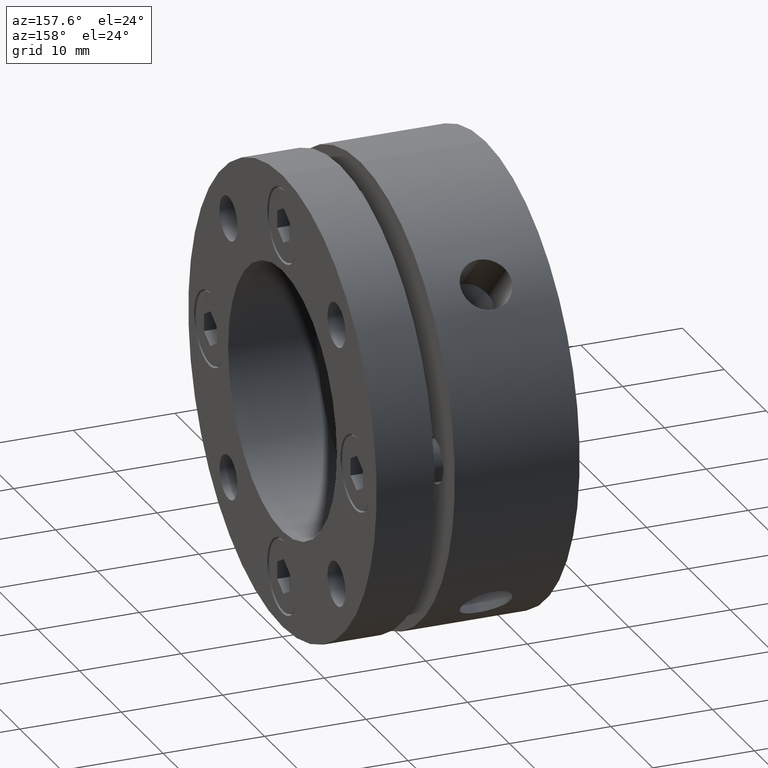
[diagram: clean part render]
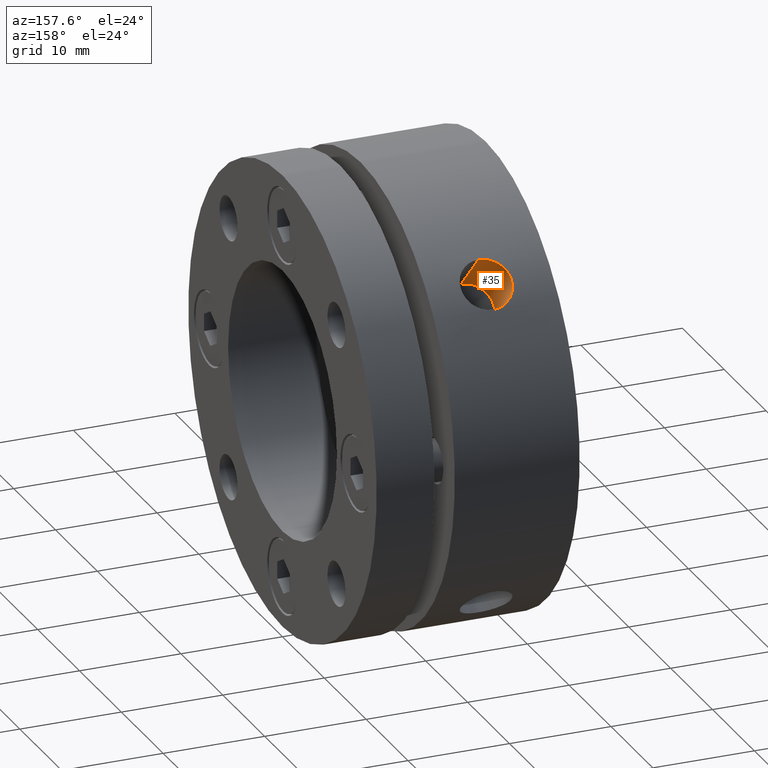
[diagram: same view with one face highlighted and labeled with its STEP entity id]
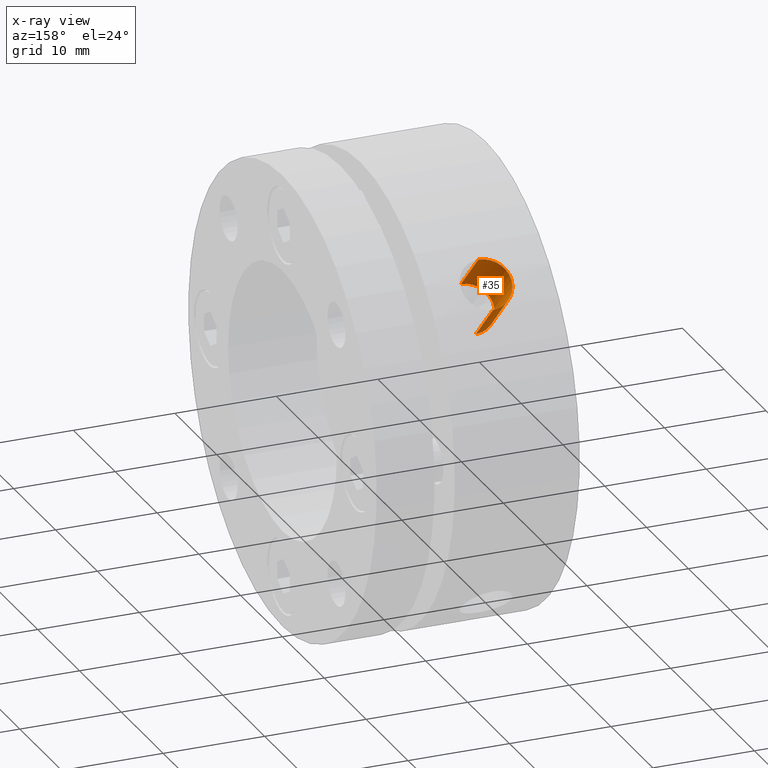
[diagram: x-ray of the same camera — body ghosted, the highlighted face saturated]
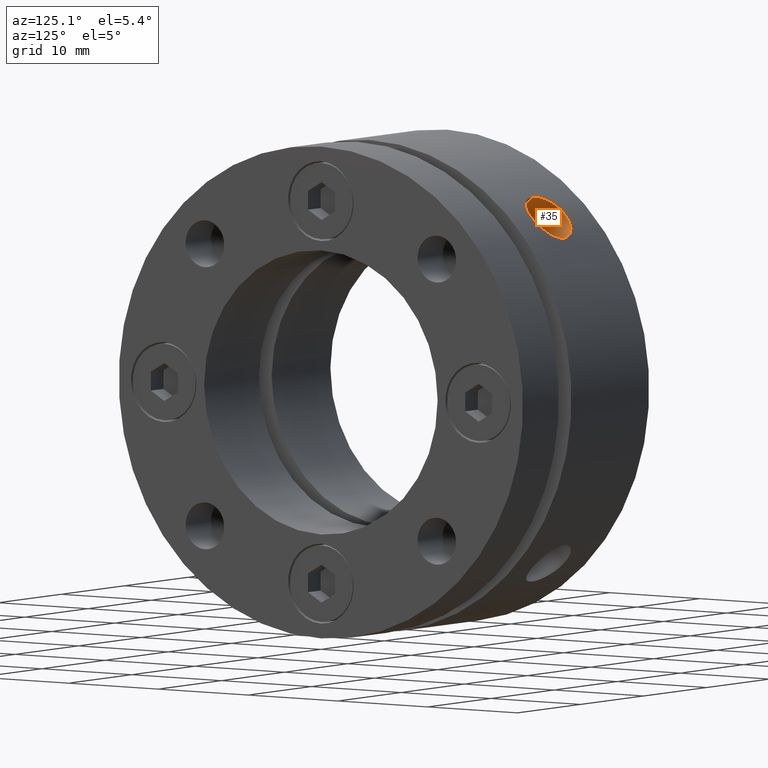
[diagram: same view with one face highlighted and labeled with its STEP entity id]
A machine part, auxiliary view. The second image highlights one B-rep face of the part: STEP entity #35.
The next image is the same camera in x-ray: the body ghosted, the highlighted face saturated — about 0% of this face is hidden behind the body in this view.
A second angle (auxiliary view) of the same face is appended — the face is thin or edge-on in the first view.
In plain terms, the highlighted cylindrical surface (edge-blend (fillet) strip) has radius 2.5 mm, axis along (0, 0.7071, 0.7071).
Its self-contained STEP definition (entity closure, byte-faithful):
#35 = ADVANCED_FACE ( 'NONE', ( #2394 ), #2403, .F. ) ;
#214 = DIRECTION ( 'NONE',  ( 0.0000000000000000000, -0.7071067811865471300, 0.7071067811865477900 ) ) ;
#216 = DIRECTION ( 'NONE',  ( 0.0000000000000000000, 0.7071067811865480200, 0.7071067811865470200 ) ) ;
#218 = CARTESIAN_POINT ( 'NONE',  ( 6.499999999999992900, 13.78858223313767800, 13.78858223313767600 ) ) ;
#473 = CARTESIAN_POINT ( 'NONE',  ( 6.499999999999992900, 13.43502884011711600, 9.899494939038948600 ) ) ;
#484 = CARTESIAN_POINT ( 'NONE',  ( 6.499999999999992900, 9.899494939038955700, 13.43502884011711500 ) ) ;
#490 = CARTESIAN_POINT ( 'NONE',  ( 6.499999999999992900, 17.57915525380826700, 14.04362134787552600 ) ) ;
#495 = CARTESIAN_POINT ( 'NONE',  ( 6.499999999999992900, 14.04362134787553100, 17.57915525380826700 ) ) ;
#666 = EDGE_LOOP ( 'NONE', ( #826, #827, #828, #829 ) ) ;
#826 = ORIENTED_EDGE ( 'NONE', *, *, #3373, .F. ) ;
#827 = ORIENTED_EDGE ( 'NONE', *, *, #3374, .T. ) ;
#828 = ORIENTED_EDGE ( 'NONE', *, *, #3425, .F. ) ;
#829 = ORIENTED_EDGE ( 'NONE', *, *, #3372, .F. ) ;
#925 = AXIS2_PLACEMENT_3D ( 'NONE', #218, #216, #214 ) ;
#1135 = DIRECTION ( 'NONE',  ( 0.0000000000000000000, 0.7071067811865480200, 0.7071067811865470200 ) ) ;
#1136 = CARTESIAN_POINT ( 'NONE',  ( 6.499999999999992900, 12.02081528017131100, 15.55634918610404700 ) ) ;
#1140 = DIRECTION ( 'NONE',  ( 0.0000000000000000000, 0.7071067811865480200, 0.7071067811865470200 ) ) ;
#1143 = CARTESIAN_POINT ( 'NONE',  ( 6.499999999999992900, 15.55634918610404700, 12.02081528017130700 ) ) ;
#1144 = CARTESIAN_POINT ( 'NONE',  ( 6.499999999999992900, 11.66726188957803400, 11.66726188957803400 ) ) ;
#1145 = DIRECTION ( 'NONE',  ( 0.0000000000000000000, 0.7071067811865480200, 0.7071067811865470200 ) ) ;
#1146 = DIRECTION ( 'NONE',  ( 0.0000000000000000000, -0.7071067811865471300, 0.7071067811865477900 ) ) ;
#1261 = CARTESIAN_POINT ( 'NONE',  ( 6.499999999999992900, 14.04362134787553100, 17.57915525380826700 ) ) ;
#1262 = CARTESIAN_POINT ( 'NONE',  ( 6.336834521531878700, 14.04362134787552700, 17.57915525380826700 ) ) ;
#1297 = CARTESIAN_POINT ( 'NONE',  ( 6.171090007578761100, 14.05648292721126000, 17.56890217144555400 ) ) ;
#1298 = CARTESIAN_POINT ( 'NONE',  ( 5.850448389558098800, 14.10668600674058800, 17.52861790615664400 ) ) ;
#1299 = CARTESIAN_POINT ( 'NONE',  ( 5.694589796624700100, 14.14375807418897000, 17.49880229077756900 ) ) ;
#1300 = CARTESIAN_POINT ( 'NONE',  ( 5.391840746390806200, 14.24159114565264200, 17.41927253684768900 ) ) ;
#1301 = CARTESIAN_POINT ( 'NONE',  ( 5.245677012930386200, 14.30246863063636900, 17.36944586711570100 ) ) ;
#1302 = CARTESIAN_POINT ( 'NONE',  ( 4.975028642675196600, 14.44230958791972500, 17.25334612264189400 ) ) ;
#1303 = CARTESIAN_POINT ( 'NONE',  ( 4.848778738432798700, 14.52180719922919900, 17.18664625045742500 ) ) ;
#1304 = CARTESIAN_POINT ( 'NONE',  ( 4.615488460062467300, 14.69978838454134600, 17.03466803667305700 ) ) ;
#1305 = CARTESIAN_POINT ( 'NONE',  ( 4.512201296588724400, 14.79538561576184300, 16.95184193531016700 ) ) ;
#1306 = CARTESIAN_POINT ( 'NONE',  ( 4.331257138296144200, 14.99859206723352400, 16.77231696932634000 ) ) ;
#1307 = CARTESIAN_POINT ( 'NONE',  ( 4.252970886097022800, 15.10747557303518500, 16.67444543535751900 ) ) ;
#1308 = CARTESIAN_POINT ( 'NONE',  ( 4.127594110941598300, 15.33062794463080000, 16.46951109140387400 ) ) ;
#1309 = CARTESIAN_POINT ( 'NONE',  ( 4.080313794223384200, 15.44442146952498400, 16.36293210257587200 ) ) ;
#1310 = CARTESIAN_POINT ( 'NONE',  ( 4.016349612376157700, 15.67601977632968300, 16.14119281509124400 ) ) ;
#1311 = CARTESIAN_POINT ( 'NONE',  ( 3.999880785371837000, 15.79433736107236500, 16.02548652508895800 ) ) ;
#1312 = CARTESIAN_POINT ( 'NONE',  ( 4.000120529971881400, 16.02803220019924900, 15.79175401374241100 ) ) ;
#1313 = CARTESIAN_POINT ( 'NONE',  ( 4.016463612904605200, 16.14162339942731400, 15.67557156238663300 ) ) ;
#1314 = CARTESIAN_POINT ( 'NONE',  ( 4.080258677617860200, 16.36270561353397600, 15.44465651224615700 ) ) ;
#1315 = CARTESIAN_POINT ( 'NONE',  ( 4.128496438647709400, 16.47131874734074200, 15.32868502898407900 ) ) ;
#1316 = CARTESIAN_POINT ( 'NONE',  ( 4.254206005333721000, 16.67612582461719800, 15.10561993020592200 ) ) ;
#1317 = CARTESIAN_POINT ( 'NONE',  ( 4.331087587242884700, 16.77217083986406000, 14.99875953336862900 ) ) ;
#1318 = CARTESIAN_POINT ( 'NONE',  ( 4.512672305383288700, 16.95228712139281800, 14.79487964044526500 ) ) ;
#1319 = CARTESIAN_POINT ( 'NONE',  ( 4.618250905935205700, 17.03659122857234100, 14.69754720084648800 ) ) ;
#1320 = CARTESIAN_POINT ( 'NONE',  ( 4.848825465913802400, 17.18655159423804000, 14.52190685513345200 ) ) ;
#1321 = CARTESIAN_POINT ( 'NONE',  ( 4.974651334486480000, 17.25324486753801900, 14.44243566964261800 ) ) ;
#1322 = CARTESIAN_POINT ( 'NONE',  ( 5.247985968824257200, 17.37037530925075400, 14.30134497684619700 ) ) ;
#1323 = CARTESIAN_POINT ( 'NONE',  ( 5.393313186711862000, 17.41968383630843000, 14.24108610244663400 ) ) ;
#1324 = CARTESIAN_POINT ( 'NONE',  ( 5.694115060324573800, 17.49865299877808100, 14.14394080737750100 ) ) ;
#1325 = CARTESIAN_POINT ( 'NONE',  ( 5.851819053499022000, 17.52889400127215700, 14.10634303127202200 ) ) ;
#1326 = CARTESIAN_POINT ( 'NONE',  ( 6.174556241274205900, 17.56923219790033400, 14.05607052486626800 ) ) ;
#1327 = CARTESIAN_POINT ( 'NONE',  ( 6.336834231173870800, 17.57915525380826700, 14.04362134787552600 ) ) ;
#1328 = CARTESIAN_POINT ( 'NONE',  ( 6.499999999999992900, 17.57915525380826700, 14.04362134787552600 ) ) ;
#2007 = VERTEX_POINT ( 'NONE', #473 ) ;
#2018 = VERTEX_POINT ( 'NONE', #484 ) ;
#2024 = VERTEX_POINT ( 'NONE', #490 ) ;
#2029 = VERTEX_POINT ( 'NONE', #495 ) ;
#2394 = FACE_OUTER_BOUND ( 'NONE', #666, .T. ) ;
#2403 = CYLINDRICAL_SURFACE ( 'NONE', #925, 2.500000000000000000 ) ;
#2616 = LINE ( 'NONE', #1136, #2620 ) ;
#2618 = CIRCLE ( 'NONE', #2663, 2.500000000000000000 ) ;
#2619 = LINE ( 'NONE', #1143, #2623 ) ;
#2620 = VECTOR ( 'NONE', #1135, 1000.000000000000000 ) ;
#2623 = VECTOR ( 'NONE', #1140, 1000.000000000000000 ) ;
#2663 = AXIS2_PLACEMENT_3D ( 'NONE', #1144, #1145, #1146 ) ;
#3293 = B_SPLINE_CURVE_WITH_KNOTS ( 'NONE', 3,
 ( #1261, #1262, #1297, #1298, #1299, #1300, #1301, #1302, #1303, #1304, #1305, #1306, #1307, #1308, #1309, #1310, #1311, #1312, #1313, #1314, #1315, #1316, #1317, #1318, #1319, #1320, #1321, #1322, #1323, #1324, #1325, #1326, #1327, #1328 ),
 .UNSPECIFIED., .F., .F.,
 ( 4, 2, 2, 2, 2, 2, 2, 2, 2, 2, 2, 2, 2, 2, 2, 2, 4 ),
 ( 0.01173242231639722000, 0.01222119876057259900, 0.01270997520474797700, 0.01319875164892335600, 0.01368752809309873400, 0.01417630453727411300, 0.01466508098144949200, 0.01515385742562487000, 0.01564263386980024500, 0.01613141031397561900, 0.01662018675815099900, 0.01710896320232637600, 0.01759773964650175600, 0.01808651609067713300, 0.01857529253485251300, 0.01906406897902789000, 0.01955284542320327000 ),
 .UNSPECIFIED. ) ;
#3372 = EDGE_CURVE ( 'NONE', #2018, #2029, #2616, .T. ) ;
#3373 = EDGE_CURVE ( 'NONE', #2007, #2018, #2618, .T. ) ;
#3374 = EDGE_CURVE ( 'NONE', #2007, #2024, #2619, .T. ) ;
#3425 = EDGE_CURVE ( 'NONE', #2029, #2024, #3293, .T. ) ;